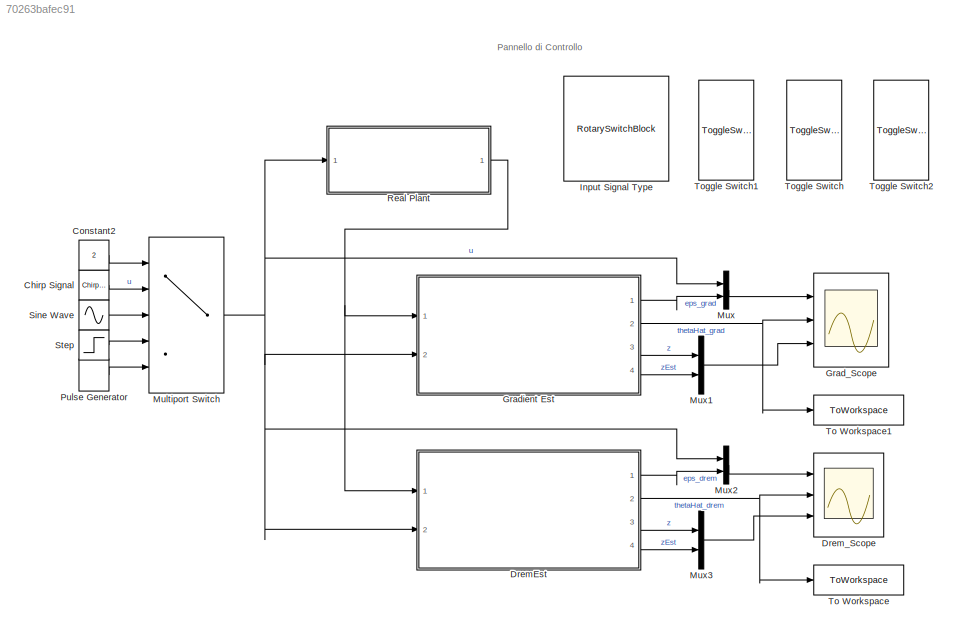
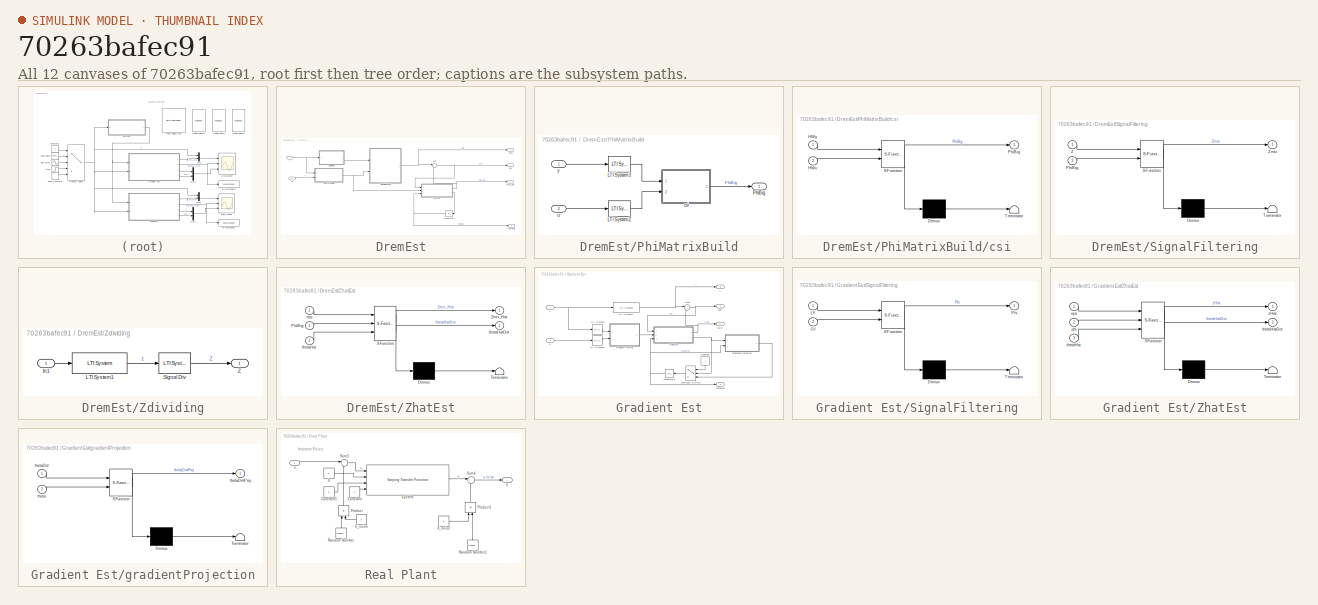
[diagram: thumbnail index - all 12 canvases of the model, root first then tree order]
MODEL slx_70263bafec91
KIND model
CONFIG AbsTol = auto
CONFIG EnableMultiTasking = off
CONFIG FixedStep = auto
CONFIG InitFcn = Drem_Grad_varLoad
CONFIG MaxStep = auto
CONFIG MinStep = auto
CONFIG RelTol = 1e-3
CONFIG SampleTimeConstraint = Unconstrained
CONFIG Solver = VariableStepAuto
CONFIG SolverName = VariableStepAuto
CONFIG StartTime = 0.0
CONFIG StopFcn = traiettoria
CONFIG StopTime = 300
BLOCK [Reference] Chirp Signal  REF=simulink/Sources/Chirp Signal
  Ports = [0, 1]
  SourceBlock = simulink/Sources/Chirp Signal
  SourceProductBaseCode = SL
  SourceType = chirp
BLOCK [Constant] Constant2
  Value = 2
BLOCK [SubSystem] DremEst
  Ports = [2, 4]
  RequestExecContextInheritance = off
BLOCK [Integrator] DremEst/Integrator1
  InitialCondition = thetaZero
  NameLocation = top
  Ports = [1, 1]
BLOCK [SubSystem] DremEst/PhiMatrixBuild
  Ports = [2, 1]
  RequestExecContextInheritance = off
BLOCK [Reference] DremEst/PhiMatrixBuild/LTI System2  REF=cstblocks/LTI System
  Ports = [1, 1]
  SourceBlock = cstblocks/LTI System
  SourceProductBaseCode = CT
  SourceType = LTI Block
BLOCK [Reference] DremEst/PhiMatrixBuild/LTI System3  REF=cstblocks/LTI System
  Ports = [1, 1]
  SourceBlock = cstblocks/LTI System
  SourceProductBaseCode = CT
  SourceType = LTI Block
BLOCK [Outport] DremEst/PhiMatrixBuild/PhiBig
BLOCK [SubSystem] DremEst/PhiMatrixBuild/csi
  ErrorFcn = Stateflow.Translate.translate
  PermitHierarchicalResolution = ExplicitOnly
  Ports = [2, 1]
  RequestExecContextInheritance = off
  SFBlockType = MATLAB Function
  TreatAsAtomicUnit = on
BLOCK [Demux] DremEst/PhiMatrixBuild/csi/ Demux 
  Outputs = 1
  Ports = [1, 1]
BLOCK [S-Function] DremEst/PhiMatrixBuild/csi/ SFunction 
  EnableBusSupport = on
  FunctionName = sf_sfun
  PortCounts = [2 2]
  Ports = [2, 2]
  SFcnIsStateOwnerBlock = off
  SFunctionDeploymentMode = off
  Tag = Stateflow S-Function 5
BLOCK [Terminator] DremEst/PhiMatrixBuild/csi/ Terminator 
BLOCK [Inport] DremEst/PhiMatrixBuild/csi/HWu
  Port = 2
BLOCK [Inport] DremEst/PhiMatrixBuild/csi/HWy
BLOCK [Outport] DremEst/PhiMatrixBuild/csi/PhiBig
BLOCK [Inport] DremEst/PhiMatrixBuild/u
  Port = 2
BLOCK [Inport] DremEst/PhiMatrixBuild/y
BLOCK [SubSystem] DremEst/SignalFiltering
  ErrorFcn = Stateflow.Translate.translate
  PermitHierarchicalResolution = ExplicitOnly
  Ports = [2, 1]
  RequestExecContextInheritance = off
  SFBlockType = MATLAB Function
  TreatAsAtomicUnit = on
BLOCK [Demux] DremEst/SignalFiltering/ Demux 
  Outputs = 1
  Ports = [1, 1]
BLOCK [S-Function] DremEst/SignalFiltering/ SFunction 
  EnableBusSupport = on
  FunctionName = sf_sfun
  PortCounts = [2 2]
  Ports = [2, 2]
  SFcnIsStateOwnerBlock = off
  SFunctionDeploymentMode = off
  Tag = Stateflow S-Function 1
BLOCK [Terminator] DremEst/SignalFiltering/ Terminator 
BLOCK [Inport] DremEst/SignalFiltering/PhiBig
  Port = 2
BLOCK [Inport] DremEst/SignalFiltering/Z
BLOCK [Outport] DremEst/SignalFiltering/Zmix
BLOCK [Sum] DremEst/Sum
  Inputs = |+-
  Ports = [2, 1]
BLOCK [Outport] DremEst/ZMix
  Port = 3
BLOCK [SubSystem] DremEst/Zdividing
  Ports = [1, 1]
  RequestExecContextInheritance = off
BLOCK [Inport] DremEst/Zdividing/In1
BLOCK [Reference] DremEst/Zdividing/LTI System1  REF=cstblocks/LTI System
  Ports = [1, 1]
  SourceBlock = cstblocks/LTI System
  SourceProductBaseCode = CT
  SourceType = LTI Block
BLOCK [Reference] DremEst/Zdividing/Signal Div  REF=cstblocks/LTI System
  Ports = [1, 1]
  SourceBlock = cstblocks/LTI System
  SourceProductBaseCode = CT
  SourceType = LTI Block
BLOCK [Outport] DremEst/Zdividing/Z
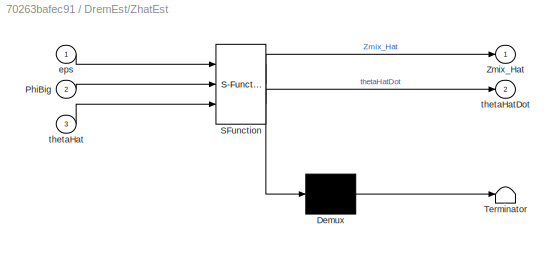
BLOCK [SubSystem] DremEst/ZhatEst
  ErrorFcn = Stateflow.Translate.translate
  PermitHierarchicalResolution = ExplicitOnly
  Ports = [3, 2]
  RequestExecContextInheritance = off
  SFBlockType = MATLAB Function
  TreatAsAtomicUnit = on
BLOCK [Demux] DremEst/ZhatEst/ Demux 
  Outputs = 1
  Ports = [1, 1]
BLOCK [S-Function] DremEst/ZhatEst/ SFunction 
  EnableBusSupport = on
  FunctionName = sf_sfun
  PortCounts = [3 3]
  Ports = [3, 3]
  SFcnIsStateOwnerBlock = off
  SFunctionDeploymentMode = off
  Tag = Stateflow S-Function 2
BLOCK [Terminator] DremEst/ZhatEst/ Terminator 
BLOCK [Inport] DremEst/ZhatEst/PhiBig
  Port = 2
BLOCK [Outport] DremEst/ZhatEst/Zmix_Hat
BLOCK [Inport] DremEst/ZhatEst/eps
BLOCK [Inport] DremEst/ZhatEst/thetaHat
  Port = 3
BLOCK [Outport] DremEst/ZhatEst/thetaHatDot
  Port = 2
BLOCK [Outport] DremEst/Zmix_Hat
  Port = 4
BLOCK [Outport] DremEst/eps
BLOCK [Outport] DremEst/thetaHat
  Port = 2
BLOCK [Inport] DremEst/u
  Port = 2
BLOCK [Inport] DremEst/y
BLOCK [Scope] Drem_Scope
  Floating = off
  NumInputPorts = 3
  Ports = [3]
  ScopeSpecificationString = Simulink.scopes.TimeScopeBlockCfg('CurrentConfiguration', extmgr.ConfigurationSet(extmgr.Configuration('Core','General UI',true),extmgr.Configuration('Core','Source UI',true),extmgr.Configuration('Sources','WiredSimulink',true,'DataLoggingVariableName','ScopeData1'),extmgr.Configuration('Visuals','Time Domain',true,'SerializedDisplays',{struct('MinYLimReal','-1.24999','MaxYLimReal','1.25','YLabelR...<+2936ch>
BLOCK [Scope] Grad_Scope
  Floating = off
  NumInputPorts = 3
  Ports = [3]
  ScopeSpecificationString = Simulink.scopes.TimeScopeBlockCfg('CurrentConfiguration', extmgr.ConfigurationSet(extmgr.Configuration('Core','General UI',true),extmgr.Configuration('Core','Source UI',true),extmgr.Configuration('Sources','WiredSimulink',true),extmgr.Configuration('Visuals','Time Domain',true,'SerializedDisplays',{struct('MinYLimReal','-1.24999','MaxYLimReal','1.24999','YLabelReal','','MinYLimMag','0.00000','MaxY...<+2728ch>
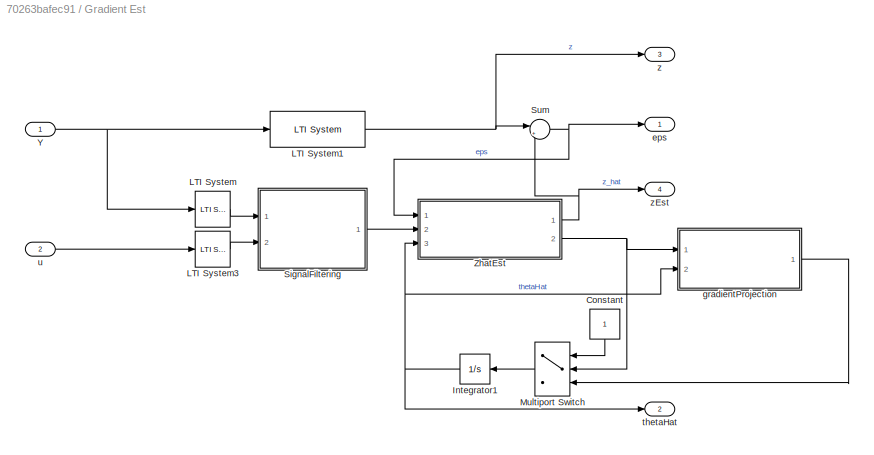
BLOCK [SubSystem] Gradient Est
  Ports = [2, 4]
  RequestExecContextInheritance = off
BLOCK [Constant] Gradient Est/Constant
  NameLocation = left
BLOCK [Integrator] Gradient Est/Integrator1
  InitialCondition = thetaZero
  NameLocation = top
  Ports = [1, 1]
BLOCK [Reference] Gradient Est/LTI System  REF=cstblocks/LTI System
  Ports = [1, 1]
  SourceBlock = cstblocks/LTI System
  SourceProductBaseCode = CT
  SourceType = LTI Block
BLOCK [Reference] Gradient Est/LTI System1  REF=cstblocks/LTI System
  Ports = [1, 1]
  SourceBlock = cstblocks/LTI System
  SourceProductBaseCode = CT
  SourceType = LTI Block
BLOCK [Reference] Gradient Est/LTI System3  REF=cstblocks/LTI System
  Ports = [1, 1]
  SourceBlock = cstblocks/LTI System
  SourceProductBaseCode = CT
  SourceType = LTI Block
BLOCK [MultiPortSwitch] Gradient Est/Multiport Switch
  InputSameDT = off
  Inputs = 2
  NameLocation = top
  Ports = [3, 1]
  SaturateOnIntegerOverflow = off
BLOCK [SubSystem] Gradient Est/SignalFiltering
  ErrorFcn = Stateflow.Translate.translate
  PermitHierarchicalResolution = ExplicitOnly
  Ports = [2, 1]
  RequestExecContextInheritance = off
  SFBlockType = MATLAB Function
  TreatAsAtomicUnit = on
BLOCK [Demux] Gradient Est/SignalFiltering/ Demux 
  Outputs = 1
  Ports = [1, 1]
BLOCK [S-Function] Gradient Est/SignalFiltering/ SFunction 
  EnableBusSupport = on
  FunctionName = sf_sfun
  PortCounts = [2 2]
  Ports = [2, 2]
  SFcnIsStateOwnerBlock = off
  SFunctionDeploymentMode = off
  Tag = Stateflow S-Function 3
BLOCK [Terminator] Gradient Est/SignalFiltering/ Terminator 
BLOCK [Inport] Gradient Est/SignalFiltering/LU
  Port = 2
BLOCK [Inport] Gradient Est/SignalFiltering/LY
BLOCK [Outport] Gradient Est/SignalFiltering/Phi
BLOCK [Sum] Gradient Est/Sum
  Inputs = |+-
  Ports = [2, 1]
BLOCK [Inport] Gradient Est/Y
BLOCK [SubSystem] Gradient Est/ZhatEst
  ErrorFcn = Stateflow.Translate.translate
  PermitHierarchicalResolution = ExplicitOnly
  Ports = [3, 2]
  RequestExecContextInheritance = off
  SFBlockType = MATLAB Function
  TreatAsAtomicUnit = on
BLOCK [Demux] Gradient Est/ZhatEst/ Demux 
  Outputs = 1
  Ports = [1, 1]
BLOCK [S-Function] Gradient Est/ZhatEst/ SFunction 
  EnableBusSupport = on
  FunctionName = sf_sfun
  PortCounts = [3 3]
  Ports = [3, 3]
  SFcnIsStateOwnerBlock = off
  SFunctionDeploymentMode = off
  Tag = Stateflow S-Function 4
BLOCK [Terminator] Gradient Est/ZhatEst/ Terminator 
BLOCK [Inport] Gradient Est/ZhatEst/eps
BLOCK [Inport] Gradient Est/ZhatEst/phi
  Port = 2
BLOCK [Inport] Gradient Est/ZhatEst/thetaHat
  Port = 3
BLOCK [Outport] Gradient Est/ZhatEst/thetaHatDot
  Port = 2
BLOCK [Outport] Gradient Est/ZhatEst/zHat
BLOCK [Outport] Gradient Est/eps
BLOCK [SubSystem] Gradient Est/gradientProjection
  ErrorFcn = Stateflow.Translate.translate
  PermitHierarchicalResolution = ExplicitOnly
  Ports = [2, 1]
  RequestExecContextInheritance = off
  SFBlockType = MATLAB Function
  TreatAsAtomicUnit = on
BLOCK [Demux] Gradient Est/gradientProjection/ Demux 
  Outputs = 1
  Ports = [1, 1]
BLOCK [S-Function] Gradient Est/gradientProjection/ SFunction 
  EnableBusSupport = on
  FunctionName = sf_sfun
  PortCounts = [2 2]
  Ports = [2, 2]
  SFcnIsStateOwnerBlock = off
  SFunctionDeploymentMode = off
  Tag = Stateflow S-Function 6
BLOCK [Terminator] Gradient Est/gradientProjection/ Terminator 
BLOCK [Inport] Gradient Est/gradientProjection/theta
  Port = 2
BLOCK [Inport] Gradient Est/gradientProjection/thetaDot
BLOCK [Outport] Gradient Est/gradientProjection/thetaDotProj
BLOCK [Outport] Gradient Est/thetaHat
  Port = 2
BLOCK [Inport] Gradient Est/u
  Port = 2
BLOCK [Outport] Gradient Est/z
  Port = 3
BLOCK [Outport] Gradient Est/zEst
  Port = 4
BLOCK [RotarySwitchBlock] Input Signal Type
  LabelPosition = Hide
BLOCK [MultiPortSwitch] Multiport Switch
  DataPortIndices = {1,2,3,4}
  DataPortOrder = Specify indices
  InputSameDT = off
  Ports = [5, 1]
  SaturateOnIntegerOverflow = off
BLOCK [Mux] Mux
  DisplayOption = bar
  Inputs = 2
  Ports = [2, 1]
BLOCK [Mux] Mux1
  DisplayOption = bar
  Inputs = 2
  Ports = [2, 1]
BLOCK [Mux] Mux2
  DisplayOption = bar
  Inputs = 2
  Ports = [2, 1]
BLOCK [Mux] Mux3
  DisplayOption = bar
  Inputs = 2
  Ports = [2, 1]
BLOCK [DiscretePulseGenerator] Pulse Generator
  Amplitude = 10
  Ports = [0, 1]
  PulseType = Time based
  PulseWidth = 5
BLOCK [SubSystem] Real Plant
  Ports = [1, 1]
  RequestExecContextInheritance = off
BLOCK [Constant] Real Plant/Constant
  Value = 0
BLOCK [Constant] Real Plant/Constant5
  Value = a
BLOCK [Product] Real Plant/Product
  NameLocation = right
  Ports = [2, 1]
BLOCK [Product] Real Plant/Product1
  NameLocation = right
  Ports = [2, 1]
BLOCK [RandomNumber] Real Plant/Random Number
  Mean = eMean
  NameLocation = right
  SampleTime = 0.1
  Variance = eMax
BLOCK [RandomNumber] Real Plant/Random Number1
  Mean = eMean
  NameLocation = right
  SampleTime = 0.1
  Variance = eMax
BLOCK [Sum] Real Plant/Sum3
  Inputs = |++
  Ports = [2, 1]
BLOCK [Sum] Real Plant/Sum4
  Inputs = |++
  Ports = [2, 1]
BLOCK [Constant] Real Plant/U_noise
  NameLocation = top
  Value = 0
BLOCK [Constant] Real Plant/X_noise
  Value = 0
BLOCK [Constant] Real Plant/b
  Value = b
BLOCK [Reference] Real Plant/system  REF=cstblocks/Linear Parameter Varying/Varying Transfer Function
  Ports = [4, 1]
  SourceBlock = cstblocks/Linear Parameter Varying/Varying Transfer Function
  SourceProductBaseCode = CT
  SourceType = Varying Transfer Function
BLOCK [Inport] Real Plant/u
BLOCK [Outport] Real Plant/y
BLOCK [Sin] Sine Wave
  Ports = [0, 1]
  SampleTime = 0
BLOCK [Step] Step
  SampleTime = 0
BLOCK [ToWorkspace] To Workspace
  FixptAsFi = on
  MaxDataPoints = inf
  Ports = [1]
  SampleTime = -1
  SaveFormat = Timeseries
  VariableName = thetaHat_DREM
BLOCK [ToWorkspace] To Workspace1
  FixptAsFi = on
  MaxDataPoints = inf
  Ports = [1]
  SampleTime = -1
  SaveFormat = Timeseries
  VariableName = thetaHat_GRAD
BLOCK [ToggleSwitchBlock] Toggle Switch
  LabelPosition = Hide
BLOCK [ToggleSwitchBlock] Toggle Switch1
  LabelPosition = Hide
BLOCK [ToggleSwitchBlock] Toggle Switch2
  LabelPosition = Hide
ANNOTATION (root): Pannello di Controllo
ANNOTATION Real Plant: Impianto Fisico
LINE Chirp Signal:1 -> Multiport Switch:2
LINE Constant2:1 -> Multiport Switch:1
NET DremEst/Integrator1:1 -> DremEst/ZhatEst:3, DremEst/thetaHat:1
LINE DremEst/PhiMatrixBuild/LTI System2:1 -> DremEst/PhiMatrixBuild/csi:2
LINE DremEst/PhiMatrixBuild/LTI System3:1 -> DremEst/PhiMatrixBuild/csi:1
LINE DremEst/PhiMatrixBuild/csi:1 -> DremEst/PhiMatrixBuild/PhiBig:1
LINE DremEst/PhiMatrixBuild/u:1 -> DremEst/PhiMatrixBuild/LTI System2:1
LINE DremEst/PhiMatrixBuild/y:1 -> DremEst/PhiMatrixBuild/LTI System3:1
NET DremEst/PhiMatrixBuild:1 -> DremEst/SignalFiltering:2, DremEst/ZhatEst:2
NET DremEst/SignalFiltering:1 -> DremEst/Sum:1, DremEst/ZMix:1
NET DremEst/Sum:1 -> DremEst/ZhatEst:1, DremEst/eps:1
LINE DremEst/Zdividing/In1:1 -> DremEst/Zdividing/LTI System1:1
LINE DremEst/Zdividing/LTI System1:1 -> DremEst/Zdividing/Signal Div:1
LINE DremEst/Zdividing/Signal Div:1 -> DremEst/Zdividing/Z:1
LINE DremEst/Zdividing:1 -> DremEst/SignalFiltering:1
NET DremEst/ZhatEst:1 -> DremEst/Sum:2, DremEst/Zmix_Hat:1
LINE DremEst/ZhatEst:2 -> DremEst/Integrator1:1
LINE DremEst/u:1 -> DremEst/PhiMatrixBuild:2
NET DremEst/y:1 -> DremEst/PhiMatrixBuild:1, DremEst/Zdividing:1
LINE DremEst:1 -> Mux2:2
NET DremEst:2 -> Drem_Scope:2, To Workspace:1
LINE DremEst:3 -> Mux3:1
LINE DremEst:4 -> Mux3:2
LINE Gradient Est/Constant:1 -> Gradient Est/Multiport Switch:1
NET Gradient Est/Integrator1:1 -> Gradient Est/ZhatEst:3, Gradient Est/gradientProjection:2, Gradient Est/thetaHat:1
NET Gradient Est/LTI System1:1 -> Gradient Est/Sum:1, Gradient Est/z:1
LINE Gradient Est/LTI System3:1 -> Gradient Est/SignalFiltering:2
LINE Gradient Est/LTI System:1 -> Gradient Est/SignalFiltering:1
LINE Gradient Est/Multiport Switch:1 -> Gradient Est/Integrator1:1
LINE Gradient Est/SignalFiltering:1 -> Gradient Est/ZhatEst:2
NET Gradient Est/Sum:1 -> Gradient Est/ZhatEst:1, Gradient Est/eps:1
NET Gradient Est/Y:1 -> Gradient Est/LTI System1:1, Gradient Est/LTI System:1
NET Gradient Est/ZhatEst:1 -> Gradient Est/Sum:2, Gradient Est/zEst:1
NET Gradient Est/ZhatEst:2 -> Gradient Est/Multiport Switch:2, Gradient Est/gradientProjection:1
LINE Gradient Est/gradientProjection:1 -> Gradient Est/Multiport Switch:3
LINE Gradient Est/u:1 -> Gradient Est/LTI System3:1
LINE Gradient Est:1 -> Mux:2
NET Gradient Est:2 -> Grad_Scope:2, To Workspace1:1
LINE Gradient Est:3 -> Mux1:1
LINE Gradient Est:4 -> Mux1:2
NET Multiport Switch:1 -> DremEst:2, Gradient Est:2, Mux2:1, Mux:1, Real Plant:1
LINE Mux1:1 -> Grad_Scope:3
LINE Mux2:1 -> Drem_Scope:1
LINE Mux3:1 -> Drem_Scope:3
LINE Mux:1 -> Grad_Scope:1
LINE Pulse Generator:1 -> Multiport Switch:5
LINE Real Plant/Constant5:1 -> Real Plant/system:3
LINE Real Plant/Constant:1 -> Real Plant/system:4
LINE Real Plant/Product1:1 -> Real Plant/Sum4:2
LINE Real Plant/Product:1 -> Real Plant/Sum3:2
LINE Real Plant/Random Number1:1 -> Real Plant/Product1:2
LINE Real Plant/Random Number:1 -> Real Plant/Product:1
LINE Real Plant/Sum3:1 -> Real Plant/system:1
LINE Real Plant/Sum4:1 -> Real Plant/y:1
LINE Real Plant/U_noise:1 -> Real Plant/Product:2
LINE Real Plant/X_noise:1 -> Real Plant/Product1:1
LINE Real Plant/b:1 -> Real Plant/system:2
LINE Real Plant/system:1 -> Real Plant/Sum4:1
LINE Real Plant/u:1 -> Real Plant/Sum3:1
NET Real Plant:1 -> DremEst:1, Gradient Est:1
LINE Sine Wave:1 -> Multiport Switch:3
LINE Step:1 -> Multiport Switch:4
note: NET lines group one-source signal fan-out (src -> all destinations, sorted); 1:1 wires keep LINE
CHART DremEst/SignalFiltering states=1 transitions=1
  STATE_LABEL 'eML_blk_kernel()'
  STATE_LABEL "SCRIPT:\nfunction Zmix  = SignalMixing(Z,PhiBig)\n\n\nZmix = adjugate(PhiBig)*Z;\n\nend\n\nfunction B = adjugate(A)\n\n% This finds the adjugate (adjoint) of square matrix A,\n% and is valid even if A is singular or complex-valued.\n% With u, s, and v obtained from [u,s,v] = svd(A), it\n% makes use of the identity adj(A) = det(u*v')*v*adj(s)*u',\n% which holds even if A and s are singular.  The expression,\n% di...<+518ch>"
CHART DremEst/ZhatEst states=1 transitions=1
  STATE_LABEL 'eML_blk_kernel()'
  STATE_LABEL "SCRIPT:\nfunction [Zmix_Hat, thetaHatDot] = Zhat(eps,PhiBig, thetaHat)\n\ncoder.extrinsic('evalin', 'assignin')\nGain = eye(2);                  % Needed in order to set variable class correctly\nGain = evalin('base','Gain'); % Read value from workspace\n\nthetaHatDot = 10*Gain*det(PhiBig)*eps;\nZmix_Hat = thetaHat * det(PhiBig);\nend\n"
CHART Gradient Est/SignalFiltering states=1 transitions=1
  STATE_LABEL 'eML_blk_kernel()'
  STATE_LABEL 'SCRIPT:\nfunction Phi  = SignalFiltering(LY,LU)\n\nPhi = [LU;\n       -LY];\n\nend\n'
CHART Gradient Est/ZhatEst states=1 transitions=1
  STATE_LABEL 'eML_blk_kernel()'
  STATE_LABEL "SCRIPT:\nfunction [zHat, thetaHatDot] = Zhat(eps,phi, thetaHat)\n\ncoder.extrinsic('evalin', 'assignin')\nGain = eye(2);                  % Needed in order to set variable class correctly\nGain = evalin('base','Gain'); % Read value from workspace\n\nthetaHatDot = Gain*phi*eps;\nzHat = thetaHat' * phi;\nend\n"
CHART DremEst/PhiMatrixBuild/csi states=1 transitions=1
  STATE_LABEL 'eML_blk_kernel()'
  STATE_LABEL 'SCRIPT:\nfunction PhiBig  = PhiMatrix(HWy,HWu)\n\nPhiBig = [HWu -HWy];\nend\n'
CHART Gradient Est/gradientProjection states=1 transitions=1
  STATE_LABEL 'eML_blk_kernel()'
  STATE_LABEL "SCRIPT:\nfunction thetaDotProj  = gradProject(thetaDot, theta)\n\ncoder.extrinsic('evalin', 'assignin')\nGain = eye(2);                  % Needed in order to set variable class correctly\nGain = evalin('base','Gain'); % Read value from workspace\n\n\n% g(thetaHat) = [0; -theta2_hat] (= [0; -bHat])\n%\n% => Dg(thetaHat) = [0  0\n%                    0 -1]\n\n% thetaDotProj = thetaDot;\ndg = [-2*theta(1) 0 ; 0 -1...<+316ch>"
CHART  states=0 transitions=0
CHART  states=0 transitions=0
CHART  states=0 transitions=0
CHART  states=0 transitions=0
CHART  states=0 transitions=0
CHART  states=0 transitions=0
